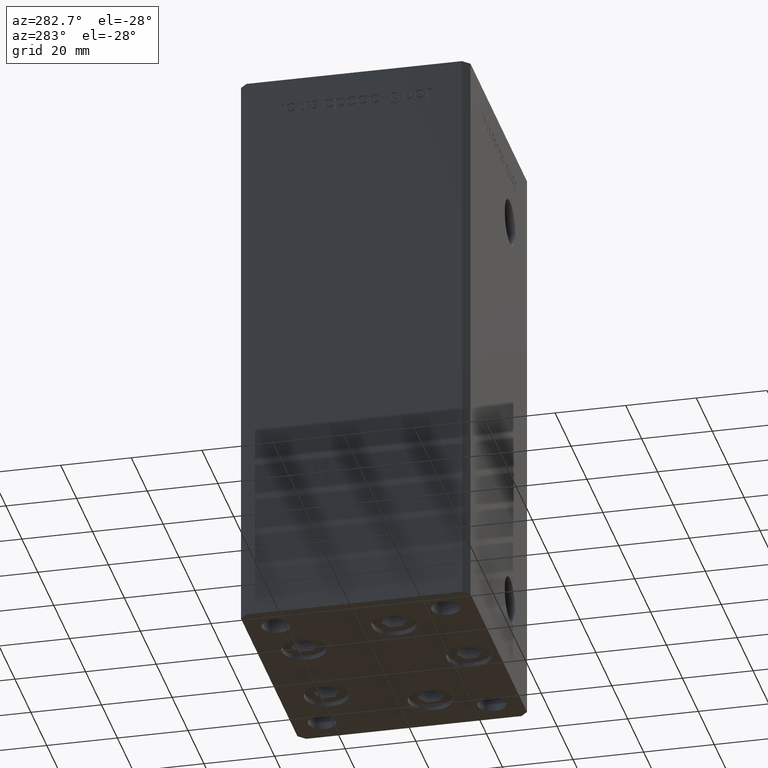
[diagram: clean part render]
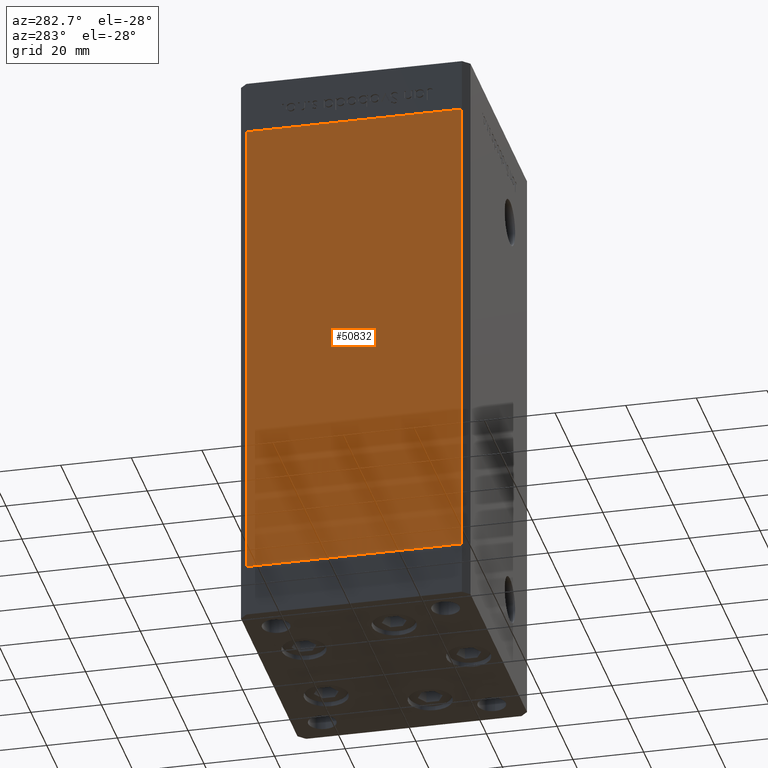
[diagram: same view with one face highlighted and labeled with its STEP entity id]
A machine part, auxiliary view. The second image highlights one B-rep face of the part: STEP entity #50832.
In plain terms, the highlighted planar face has unit normal (1, 0, 0).
Its self-contained STEP definition (entity closure, byte-faithful):
#117 = DIRECTION ( 'NONE',  ( -0.000000000000000000, -0.000000000000000000, -1.000000000000000000 ) ) ;
#709 = EDGE_CURVE ( 'NONE', #8689, #18493, #49904, .T. ) ;
#1025 = DIRECTION ( 'NONE',  ( 2.275047181608927644E-16, -1.000000000000000000, 0.000000000000000000 ) ) ;
#1803 = LINE ( 'NONE', #5766, #42151 ) ;
#5766 = CARTESIAN_POINT ( 'NONE',  ( -37.50000000000000711, 30.50000000000000000, 136.0000000000000000 ) ) ;
#6088 = LINE ( 'NONE', #42477, #41366 ) ;
#6399 = VERTEX_POINT ( 'NONE', #10112 ) ;
#8689 = VERTEX_POINT ( 'NONE', #27336 ) ;
#10112 = CARTESIAN_POINT ( 'NONE',  ( -37.50000000000000711, 30.50000000000000000, 0.000000000000000000 ) ) ;
#11080 = DIRECTION ( 'NONE',  ( 2.275047181608927644E-16, -1.000000000000000000, 0.000000000000000000 ) ) ;
#16746 = ORIENTED_EDGE ( 'NONE', *, *, #32883, .T. ) ;
#17784 = ORIENTED_EDGE ( 'NONE', *, *, #709, .F. ) ;
#18493 = VERTEX_POINT ( 'NONE', #26868 ) ;
#18970 = DIRECTION ( 'NONE',  ( -2.275047181608927644E-16, 1.000000000000000000, 0.000000000000000000 ) ) ;
#21431 = DIRECTION ( 'NONE',  ( -0.000000000000000000, -0.000000000000000000, -1.000000000000000000 ) ) ;
#22405 = FACE_OUTER_BOUND ( 'NONE', #43381, .T. ) ;
#24658 = CARTESIAN_POINT ( 'NONE',  ( -37.50000000000000711, 30.50000000000000000, 136.0000000000000000 ) ) ;
#26630 = DIRECTION ( 'NONE',  ( 1.000000000000000000, 2.275047181608927644E-16, -0.000000000000000000 ) ) ;
#26868 = CARTESIAN_POINT ( 'NONE',  ( -37.49999999999999289, -30.50000000000000000, 0.000000000000000000 ) ) ;
#26896 = CARTESIAN_POINT ( 'NONE',  ( -37.50000000000000711, 30.50000000000000000, 136.0000000000000000 ) ) ;
#27246 = VECTOR ( 'NONE', #21431, 1000.000000000000000 ) ;
#27336 = CARTESIAN_POINT ( 'NONE',  ( -37.49999999999999289, -30.50000000000000000, 136.0000000000000000 ) ) ;
#27427 = CARTESIAN_POINT ( 'NONE',  ( -37.50000000000000711, 30.50000000000000000, 136.0000000000000000 ) ) ;
#27501 = ORIENTED_EDGE ( 'NONE', *, *, #47255, .T. ) ;
#29367 = VECTOR ( 'NONE', #117, 1000.000000000000000 ) ;
#32883 = EDGE_CURVE ( 'NONE', #43559, #6399, #44683, .T. ) ;
#35577 = AXIS2_PLACEMENT_3D ( 'NONE', #26896, #26630, #18970 ) ;
#41366 = VECTOR ( 'NONE', #11080, 1000.000000000000000 ) ;
#42151 = VECTOR ( 'NONE', #1025, 1000.000000000000000 ) ;
#42477 = CARTESIAN_POINT ( 'NONE',  ( -37.50000000000000711, 30.50000000000000000, 0.000000000000000000 ) ) ;
#42696 = PLANE ( 'NONE',  #35577 ) ;
#43381 = EDGE_LOOP ( 'NONE', ( #27501, #17784, #44953, #16746 ) ) ;
#43559 = VERTEX_POINT ( 'NONE', #27427 ) ;
#44683 = LINE ( 'NONE', #24658, #29367 ) ;
#44953 = ORIENTED_EDGE ( 'NONE', *, *, #46145, .F. ) ;
#45666 = CARTESIAN_POINT ( 'NONE',  ( -37.49999999999999289, -30.50000000000000000, 136.0000000000000000 ) ) ;
#46145 = EDGE_CURVE ( 'NONE', #43559, #8689, #1803, .T. ) ;
#47255 = EDGE_CURVE ( 'NONE', #6399, #18493, #6088, .T. ) ;
#49904 = LINE ( 'NONE', #45666, #27246 ) ;
#50832 = ADVANCED_FACE ( 'NONE', ( #22405 ), #42696, .F. ) ;